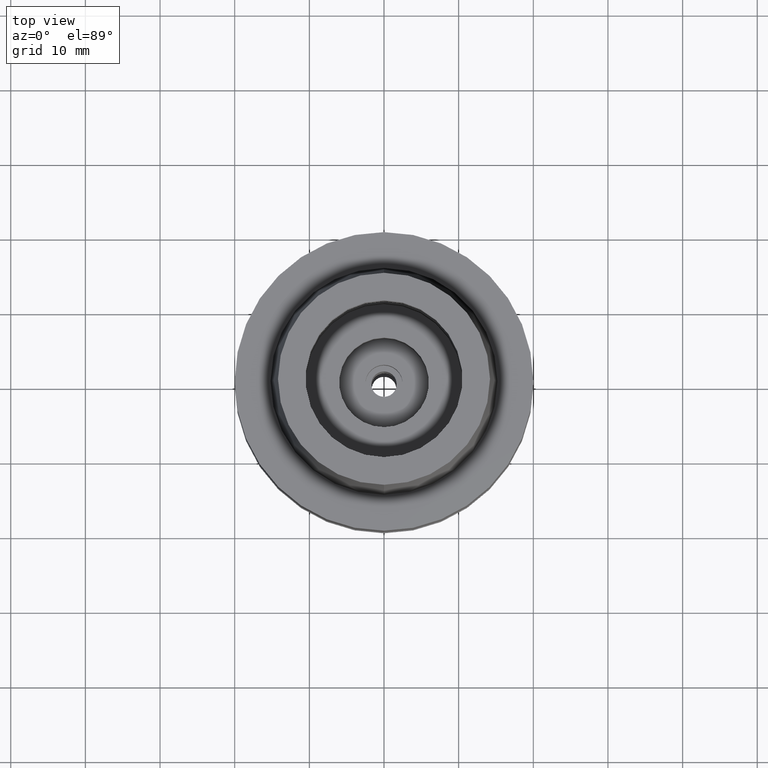
[diagram: clean part render]
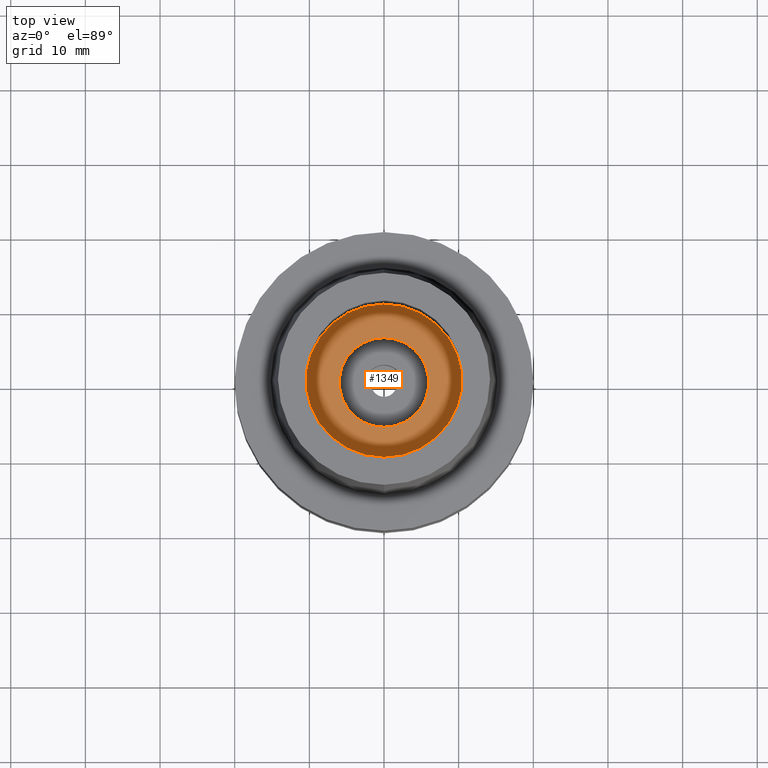
[diagram: same view with one face highlighted and labeled with its STEP entity id]
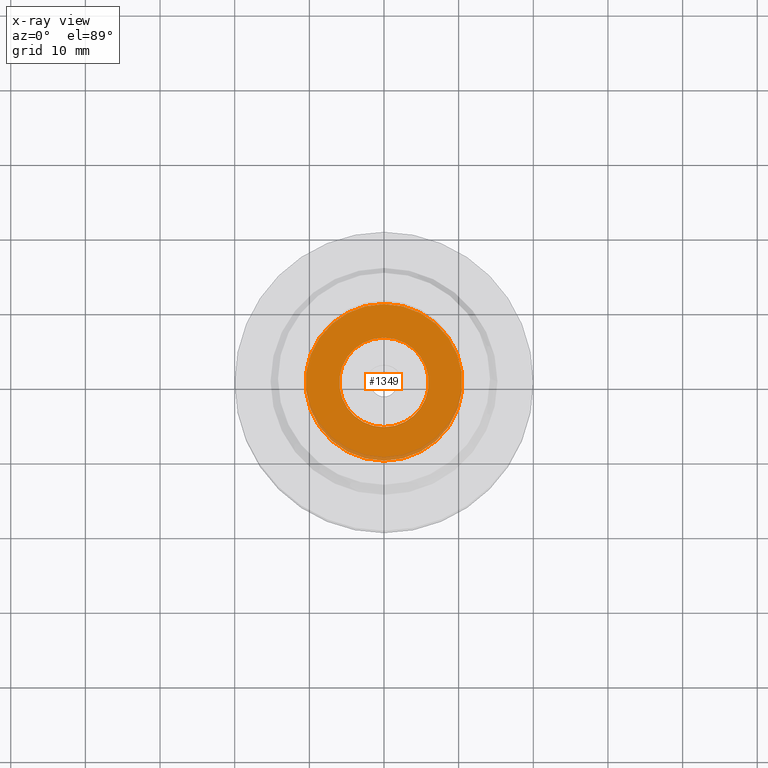
[diagram: x-ray of the same camera — body ghosted, the highlighted face saturated]
A machine part, top view. The second image highlights one B-rep face of the part: STEP entity #1349.
The next image is the same camera in x-ray: the body ghosted, the highlighted face saturated — about 4% of this face is hidden behind the body in this view.
In plain terms, the highlighted planar face has unit normal (0, 0, 1).
Its self-contained STEP definition (entity closure, byte-faithful):
#93 = DIRECTION ( 'NONE',  ( 0.0000000000000000000, 0.0000000000000000000, -1.000000000000000000 ) ) ;
#108 = EDGE_LOOP ( 'NONE', ( #1824, #2511 ) ) ;
#125 = CARTESIAN_POINT ( 'NONE',  ( 0.0000000000000000000, 6.000000000000000000, -7.950000000000000178 ) ) ;
#143 = EDGE_CURVE ( 'NONE', #652, #2321, #430, .T. ) ;
#398 = CARTESIAN_POINT ( 'NONE',  ( 0.0000000000000000000, -6.000000000000000000, -7.950000000000000178 ) ) ;
#430 = CIRCLE ( 'NONE', #518, 6.000000000000000000 ) ;
#473 = PLANE ( 'NONE',  #2432 ) ;
#516 = CARTESIAN_POINT ( 'NONE',  ( 0.0000000000000000000, 0.0000000000000000000, -7.950000000000000178 ) ) ;
#518 = AXIS2_PLACEMENT_3D ( 'NONE', #723, #1589, #2002 ) ;
#566 = EDGE_LOOP ( 'NONE', ( #1147, #2251 ) ) ;
#652 = VERTEX_POINT ( 'NONE', #398 ) ;
#711 = DIRECTION ( 'NONE',  ( 1.000000000000000000, 0.0000000000000000000, 0.0000000000000000000 ) ) ;
#723 = CARTESIAN_POINT ( 'NONE',  ( 0.0000000000000000000, 0.0000000000000000000, -7.950000000000000178 ) ) ;
#794 = CARTESIAN_POINT ( 'NONE',  ( 0.0000000000000000000, 0.0000000000000000000, -7.950000000000000178 ) ) ;
#1083 = AXIS2_PLACEMENT_3D ( 'NONE', #1294, #2498, #2101 ) ;
#1085 = EDGE_CURVE ( 'NONE', #1843, #1571, #2620, .T. ) ;
#1115 = FACE_OUTER_BOUND ( 'NONE', #566, .T. ) ;
#1118 = CARTESIAN_POINT ( 'NONE',  ( 0.0000000000000000000, 0.0000000000000000000, -7.950000000000000178 ) ) ;
#1121 = EDGE_CURVE ( 'NONE', #2321, #652, #2315, .T. ) ;
#1131 = AXIS2_PLACEMENT_3D ( 'NONE', #794, #1413, #1869 ) ;
#1147 = ORIENTED_EDGE ( 'NONE', *, *, #2184, .F. ) ;
#1168 = CIRCLE ( 'NONE', #1083, 10.50000000000000000 ) ;
#1294 = CARTESIAN_POINT ( 'NONE',  ( 0.0000000000000000000, 0.0000000000000000000, -7.950000000000000178 ) ) ;
#1349 = ADVANCED_FACE ( 'NONE', ( #1115, #1957 ), #473, .T. ) ;
#1413 = DIRECTION ( 'NONE',  ( 0.0000000000000000000, 0.0000000000000000000, 1.000000000000000000 ) ) ;
#1571 = VERTEX_POINT ( 'NONE', #2474 ) ;
#1589 = DIRECTION ( 'NONE',  ( 0.0000000000000000000, 0.0000000000000000000, 1.000000000000000000 ) ) ;
#1824 = ORIENTED_EDGE ( 'NONE', *, *, #1121, .F. ) ;
#1843 = VERTEX_POINT ( 'NONE', #2693 ) ;
#1869 = DIRECTION ( 'NONE',  ( 0.0000000000000000000, 1.000000000000000000, 0.0000000000000000000 ) ) ;
#1877 = AXIS2_PLACEMENT_3D ( 'NONE', #1118, #93, #2463 ) ;
#1943 = DIRECTION ( 'NONE',  ( 0.0000000000000000000, 0.0000000000000000000, 1.000000000000000000 ) ) ;
#1957 = FACE_BOUND ( 'NONE', #108, .T. ) ;
#2002 = DIRECTION ( 'NONE',  ( 0.0000000000000000000, -1.000000000000000000, 0.0000000000000000000 ) ) ;
#2101 = DIRECTION ( 'NONE',  ( 0.0000000000000000000, 1.000000000000000000, 0.0000000000000000000 ) ) ;
#2184 = EDGE_CURVE ( 'NONE', #1571, #1843, #1168, .T. ) ;
#2251 = ORIENTED_EDGE ( 'NONE', *, *, #1085, .F. ) ;
#2315 = CIRCLE ( 'NONE', #1131, 6.000000000000000000 ) ;
#2321 = VERTEX_POINT ( 'NONE', #125 ) ;
#2432 = AXIS2_PLACEMENT_3D ( 'NONE', #516, #1943, #711 ) ;
#2463 = DIRECTION ( 'NONE',  ( 0.0000000000000000000, -1.000000000000000000, 0.0000000000000000000 ) ) ;
#2474 = CARTESIAN_POINT ( 'NONE',  ( 0.0000000000000000000, 10.50000000000000000, -7.950000000000000178 ) ) ;
#2498 = DIRECTION ( 'NONE',  ( 0.0000000000000000000, 0.0000000000000000000, -1.000000000000000000 ) ) ;
#2511 = ORIENTED_EDGE ( 'NONE', *, *, #143, .F. ) ;
#2620 = CIRCLE ( 'NONE', #1877, 10.50000000000000000 ) ;
#2693 = CARTESIAN_POINT ( 'NONE',  ( 0.0000000000000000000, -10.50000000000000000, -7.950000000000000178 ) ) ;